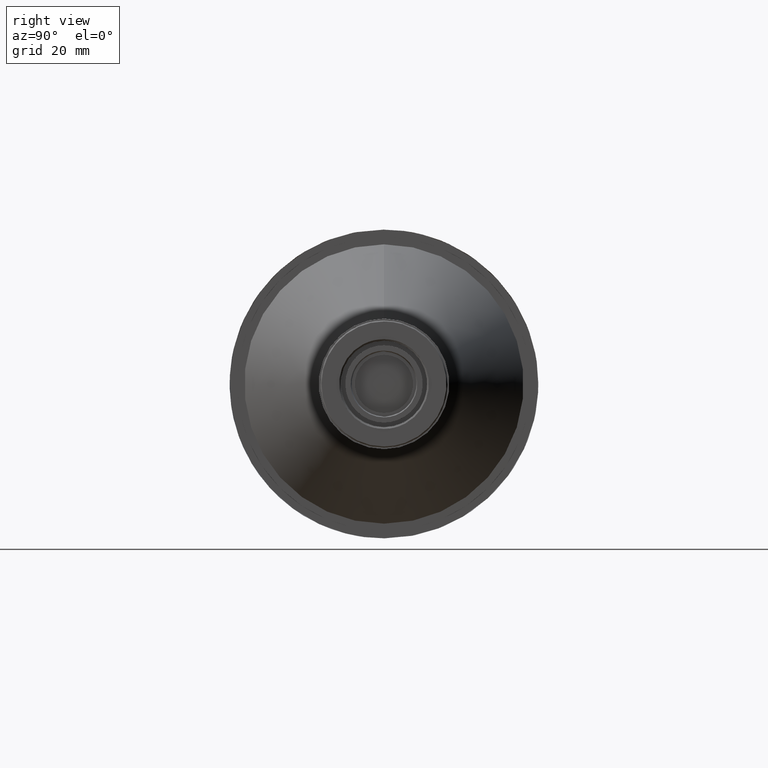
[diagram: clean part render]
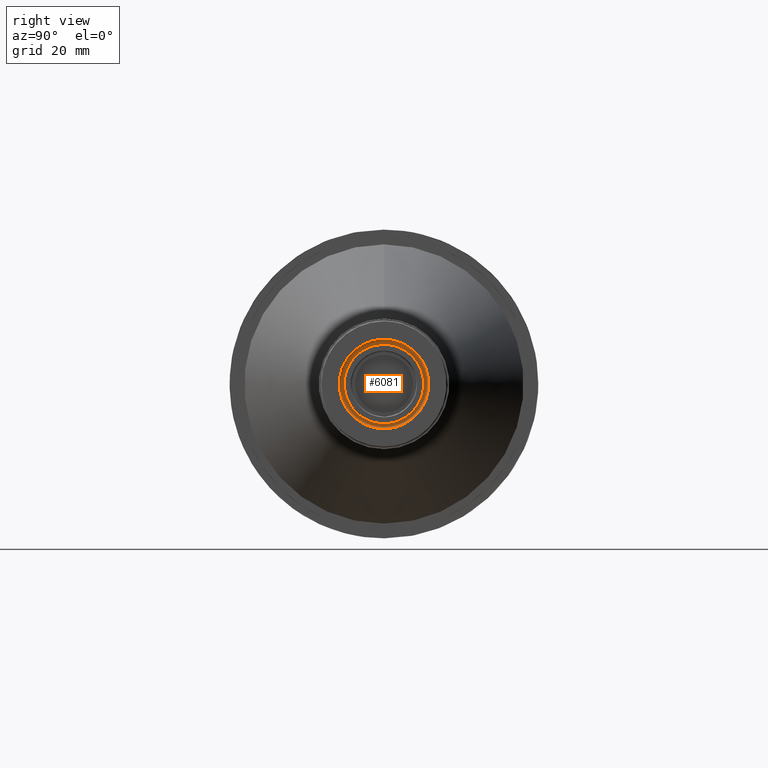
[diagram: same view with one face highlighted and labeled with its STEP entity id]
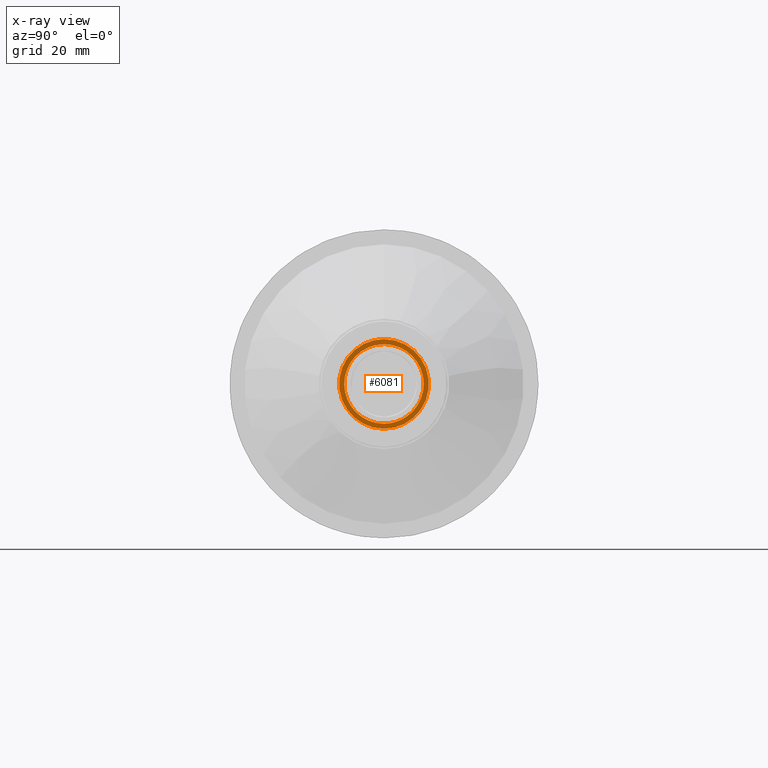
[diagram: x-ray of the same camera — body ghosted, the highlighted face saturated]
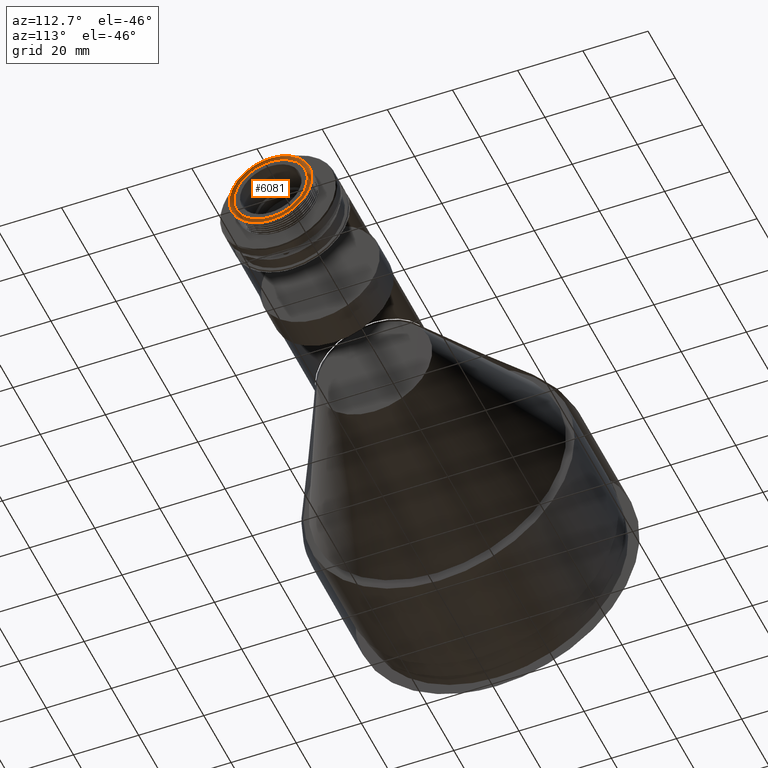
[diagram: same view with one face highlighted and labeled with its STEP entity id]
A machine part, right view. The second image highlights one B-rep face of the part: STEP entity #6081.
The next image is the same camera in x-ray: the body ghosted, the highlighted face saturated — about 0% of this face is hidden behind the body in this view.
A second angle (auxiliary view) of the same face is appended — the face is thin or edge-on in the first view.
In plain terms, the highlighted planar face has unit normal (1, 0, 0).
Its self-contained STEP definition (entity closure, byte-faithful):
#68 = ORIENTED_EDGE ( 'NONE', *, *, #9069, .F. ) ;
#124 = ORIENTED_EDGE ( 'NONE', *, *, #7775, .F. ) ;
#198 = CARTESIAN_POINT ( 'NONE',  ( 142.1281150460000049, -4.089309520994381941, -152.0589208175169347 ) ) ;
#252 = CARTESIAN_POINT ( 'NONE',  ( 142.1281150460000617, -12.05249437337261575, -168.2007247117704765 ) ) ;
#257 = CARTESIAN_POINT ( 'NONE',  ( 142.1281150461006462, -2.469514031852679370, -153.1357972609465037 ) ) ;
#275 = CARTESIAN_POINT ( 'NONE',  ( 142.1281150460000333, 0.8337087296231190381, -176.8114151909013287 ) ) ;
#291 = CARTESIAN_POINT ( 'NONE',  ( 142.1281150470085208, 3.305403645210173380, -174.8649396506705216 ) ) ;
#307 = CARTESIAN_POINT ( 'NONE',  ( 142.1281150460000049, -11.02318444323632285, -157.7493154524258898 ) ) ;
#338 = B_SPLINE_CURVE_WITH_KNOTS ( 'NONE', 3,
 ( #886, #5170, #5683, #10597, #8423, #8476, #942, #6859, #7496, #8973, #3381, #3435, #1558, #1047, #10038, #2622, #3486, #7302 ),
 .UNSPECIFIED., .F., .F.,
 ( 4, 2, 2, 2, 2, 2, 2, 2, 4 ),
 ( 0.000000000000000000, 0.1161941781392217682, 0.2323883562784435364, 0.3485825344176653462, 0.4647767125568871838, 0.5809708906961090769, 0.6971650688353308034, 0.8133592469745525300, 0.9295534251137743675 ),
 .UNSPECIFIED. ) ;
#341 = FACE_OUTER_BOUND ( 'NONE', #2191, .T. ) ;
#479 = EDGE_CURVE ( 'NONE', #3089, #2261, #4824, .T. ) ;
#886 = CARTESIAN_POINT ( 'NONE',  ( 142.1281150460268066, 5.200632462929629636E-16, -175.3614151910510088 ) ) ;
#927 = VERTEX_POINT ( 'NONE', #7573 ) ;
#942 = CARTESIAN_POINT ( 'NONE',  ( 142.1281150460992535, -9.374096471147021603, -170.4802964846820998 ) ) ;
#1014 = CARTESIAN_POINT ( 'NONE',  ( 142.1281150460000049, -6.362059593615947861, -153.0882908286282884 ) ) ;
#1036 = CARTESIAN_POINT ( 'NONE',  ( 142.1281150460000049, 9.570192958380822290, -172.5017855692788373 ) ) ;
#1040 = CARTESIAN_POINT ( 'NONE',  ( 142.1281150467932548, 2.665316661739832504, -153.1007369669027298 ) ) ;
#1047 = CARTESIAN_POINT ( 'NONE',  ( 142.1281150461693414, -8.365259645773912567, -156.4655820353657703 ) ) ;
#1201 = CARTESIAN_POINT ( 'NONE',  ( 142.1281150460000049, 8.390319283762403657, -173.6815570545719254 ) ) ;
#1214 = CARTESIAN_POINT ( 'NONE',  ( 142.1281150474219999, 2.236445919930073245, -175.1934455286929051 ) ) ;
#1250 = CARTESIAN_POINT ( 'NONE',  ( 142.1281150460000049, 12.29318146721819005, -167.4072856962959008 ) ) ;
#1298 = ORIENTED_EDGE ( 'NONE', *, *, #479, .T. ) ;
#1464 = CARTESIAN_POINT ( 'NONE',  ( 142.1281150462090750, -0.8299291593169152437, -152.8614151908892893 ) ) ;
#1544 = VERTEX_POINT ( 'NONE', #291 ) ;
#1558 = CARTESIAN_POINT ( 'NONE',  ( 142.1281150461565801, -9.954685225413809846, -158.6947210287233929 ) ) ;
#1753 = ORIENTED_EDGE ( 'NONE', *, *, #3454, .T. ) ;
#1833 = CARTESIAN_POINT ( 'NONE',  ( 142.1281150460000049, -8.390370378502133519, -173.6816081493151671 ) ) ;
#1862 = CARTESIAN_POINT ( 'NONE',  ( 142.1281150460993956, -1.333330925090916115E-09, -152.8614151907445091 ) ) ;
#1887 = CARTESIAN_POINT ( 'NONE',  ( 142.1281150460000049, -11.41404575266847843, -169.7422648520538360 ) ) ;
#1911 = CARTESIAN_POINT ( 'NONE',  ( 142.1281150460000049, 5.630849661164244679, -175.5254609434117867 ) ) ;
#1915 = CARTESIAN_POINT ( 'NONE',  ( 142.1281150502141486, 10.49256231324906352, -159.8399887272955198 ) ) ;
#1944 = CARTESIAN_POINT ( 'NONE',  ( 142.1281150460000049, -5.630849661174716303, -152.6973694381954374 ) ) ;
#1976 = CARTESIAN_POINT ( 'NONE',  ( 142.1281150505417656, 10.92717457548968518, -161.1221337161994427 ) ) ;
#1981 = B_SPLINE_CURVE_WITH_KNOTS ( 'NONE', 3,
 ( #8479, #1214, #4365, #6166 ),
 .UNSPECIFIED., .F., .F.,
 ( 4, 4 ),
 ( 0.9050760576142046210, 1.000000000000000000 ),
 .UNSPECIFIED. ) ;
#2003 = CARTESIAN_POINT ( 'NONE',  ( 142.1281150460000049, -12.61876465516866652, -162.4519915171018170 ) ) ;
#2052 = CARTESIAN_POINT ( 'NONE',  ( 142.1281150460000617, -7.749384180475515471, -174.2075589002413381 ) ) ;
#2191 = EDGE_LOOP ( 'NONE', ( #1298, #1753 ) ) ;
#2261 = VERTEX_POINT ( 'NONE', #4822 ) ;
#2325 = CARTESIAN_POINT ( 'NONE',  ( 142.1281150460000049, 6.362099738270784677, -153.0882307476019832 ) ) ;
#2483 = CARTESIAN_POINT ( 'NONE',  ( 142.1281150460000617, 9.570141863666275839, -155.7210959070163199 ) ) ;
#2622 = CARTESIAN_POINT ( 'NONE',  ( 142.1281150461884693, -5.084660829757294387, -153.9831104053117770 ) ) ;
#2695 = CARTESIAN_POINT ( 'NONE',  ( 142.1281150460000049, -12.29325233769966808, -167.4072997933409397 ) ) ;
#2724 = CARTESIAN_POINT ( 'NONE',  ( 142.1281150490085281, 8.350373444438940140, -156.4556845762364503 ) ) ;
#2730 = DIRECTION ( 'NONE',  ( 0.000000000000000000, 1.000000000000000000, 0.000000000000000000 ) ) ;
#2750 = CARTESIAN_POINT ( 'NONE',  ( 142.1281150460000049, -12.69996387074446531, -163.2771546439656731 ) ) ;
#2831 = CARTESIAN_POINT ( 'NONE',  ( 142.1281150460000049, 3.295703086390380232, -176.4047036260806749 ) ) ;
#2860 = CARTESIAN_POINT ( 'NONE',  ( 142.1281150459999481, -0.8340789532482671964, -176.8114151909012719 ) ) ;
#2990 = CARTESIAN_POINT ( 'NONE',  ( 142.1281150506490576, 8.811268366744505087, -171.2318433880163298 ) ) ;
#3089 = VERTEX_POINT ( 'NONE', #4579 ) ;
#3300 = CARTESIAN_POINT ( 'NONE',  ( 142.1281150460000617, 11.02312436214628200, -157.7493555972993988 ) ) ;
#3381 = CARTESIAN_POINT ( 'NONE',  ( 142.1281150461374523, -11.23244554901814851, -162.6052609583236119 ) ) ;
#3435 = CARTESIAN_POINT ( 'NONE',  ( 142.1281150461502421, -10.54350708471262088, -159.9556009580037426 ) ) ;
#3454 = EDGE_CURVE ( 'NONE', #2261, #3089, #4943, .T. ) ;
#3486 = CARTESIAN_POINT ( 'NONE',  ( 142.1281150461949210, -3.805005278530035007, -153.4362913783233751 ) ) ;
#3531 = CARTESIAN_POINT ( 'NONE',  ( 142.1281150460000049, 11.02318444313323909, -170.4735149291873881 ) ) ;
#3537 = CARTESIAN_POINT ( 'NONE',  ( 142.1281150481080431, 6.330300778964928377, -154.7164037521253590 ) ) ;
#3637 = CARTESIAN_POINT ( 'NONE',  ( 142.1281150460000049, 6.362059593462438656, -175.1345395530319706 ) ) ;
#4306 = ORIENTED_EDGE ( 'NONE', *, *, #5596, .F. ) ;
#4355 = CARTESIAN_POINT ( 'NONE',  ( 142.1281150476468440, 5.164380136115298114, -154.0283538657291160 ) ) ;
#4365 = CARTESIAN_POINT ( 'NONE',  ( 142.1281150467542034, 1.118296350182958587, -175.3614151917524566 ) ) ;
#4381 = CARTESIAN_POINT ( 'NONE',  ( 142.1281150460023923, -3.379735931423594870E-15, -176.8114151909504983 ) ) ;
#4403 = CARTESIAN_POINT ( 'NONE',  ( 142.1281150460000049, 12.29325233756361513, -160.8155305883485937 ) ) ;
#4415 = DIRECTION ( 'NONE',  ( 1.000000000000000000, 0.000000000000000000, 0.000000000000000000 ) ) ;
#4537 = CARTESIAN_POINT ( 'NONE',  ( 142.1281150460000049, -12.70003612953393279, -164.9456757377003271 ) ) ;
#4579 = CARTESIAN_POINT ( 'NONE',  ( 142.1281150460023923, -3.379735931423594870E-15, -176.8114151909504983 ) ) ;
#4692 = CARTESIAN_POINT ( 'NONE',  ( 142.1281150460035860, -4.670272243563119491E-14, -151.4114151909254815 ) ) ;
#4724 = CARTESIAN_POINT ( 'NONE',  ( 142.1281150470085208, 3.305403645210173380, -174.8649396506705216 ) ) ;
#4766 = CARTESIAN_POINT ( 'NONE',  ( 142.1281150460000049, 3.295870505412672902, -151.8182337235437842 ) ) ;
#4819 = CARTESIAN_POINT ( 'NONE',  ( 142.1281150462051812, -1.659825210603128376, -152.9536258632644206 ) ) ;
#4822 = CARTESIAN_POINT ( 'NONE',  ( 142.1281150460035860, -4.670272243563119491E-14, -151.4114151909254815 ) ) ;
#4824 = B_SPLINE_CURVE_WITH_KNOTS ( 'NONE', 3,
 ( #4381, #2860, #10165, #6130, #8547, #7735, #9469, #2052, #1833, #5963, #8649, #9414, #1887, #252, #2695, #7623, #4537, #2750, #2003, #10111, #9253, #5138, #307, #8597, #8440, #9361, #6015, #1014, #1944, #198, #6823, #5193, #5251, #4692 ),
 .UNSPECIFIED., .F., .F.,
 ( 4, 2, 2, 2, 2, 2, 2, 2, 2, 2, 2, 2, 2, 2, 2, 2, 4 ),
 ( 0.000000000000000000, 0.06250000000000000000, 0.1250000000000000000, 0.1875000000000000000, 0.2500000000000000000, 0.3125000000000000000, 0.3750000000000000000, 0.4375000000000000000, 0.5000000000000000000, 0.5625000000000000000, 0.6250000000000000000, 0.6875000000000000000, 0.7500000000000000000, 0.8125000000000000000, 0.8750000000000000000, 0.9375000000000000000, 1.000000000000000000 ),
 .UNSPECIFIED. ) ;
#4943 = B_SPLINE_CURVE_WITH_KNOTS ( 'NONE', 3,
 ( #5747, #10499, #6399, #4766, #6458, #9739, #2325, #8121, #9902, #2483, #10706, #3300, #6617, #5802, #4403, #8620, #5986, #8464, #6155, #1250, #10243, #9274, #3531, #6040, #1036, #1201, #5159, #3637, #1911, #7708, #2831, #9327, #275, #9439 ),
 .UNSPECIFIED., .F., .F.,
 ( 4, 2, 2, 2, 2, 2, 2, 2, 2, 2, 2, 2, 2, 2, 2, 2, 4 ),
 ( 0.000000000000000000, 0.06250000000000000000, 0.1250000000000000000, 0.1875000000000000000, 0.2500000000000000000, 0.3125000000000000000, 0.3750000000000000000, 0.4375000000000000000, 0.5000000000000000000, 0.5625000000000000000, 0.6250000000000000000, 0.6875000000000000000, 0.7500000000000000000, 0.8125000000000000000, 0.8750000000000000000, 0.9375000000000000000, 1.000000000000000000 ),
 .UNSPECIFIED. ) ;
#5138 = CARTESIAN_POINT ( 'NONE',  ( 142.1281150460000049, -11.41397899425601636, -158.4805931818600584 ) ) ;
#5159 = CARTESIAN_POINT ( 'NONE',  ( 142.1281150460000049, 7.749424325243238876, -174.2076189811830886 ) ) ;
#5170 = CARTESIAN_POINT ( 'NONE',  ( 142.1281150460541198, -1.368880411574136646, -175.3614151910523447 ) ) ;
#5193 = CARTESIAN_POINT ( 'NONE',  ( 142.1281150460000049, -1.659591092913893728, -151.4927575037207816 ) ) ;
#5226 = CARTESIAN_POINT ( 'NONE',  ( 142.1281150510110649, 11.32317114359612198, -163.7582251552249772 ) ) ;
#5251 = CARTESIAN_POINT ( 'NONE',  ( 142.1281150460000333, -0.8337087297044937229, -151.4114151907647283 ) ) ;
#5477 = B_SPLINE_CURVE_WITH_KNOTS ( 'NONE', 3,
 ( #1862, #8468, #1040, #4355, #3537, #2724, #6046, #1915, #1976, #5226, #8132, #10402, #5545, #2990, #8083, #10460, #7973, #4724 ),
 .UNSPECIFIED., .F., .F.,
 ( 4, 2, 2, 2, 2, 2, 2, 2, 4 ),
 ( 0.000000000000000000, 0.1131345072017755776, 0.2262690144035511552, 0.3394035216053267190, 0.4525380288071023105, 0.5656725360088779020, 0.6788070432106534380, 0.7919415504124290850, 0.9050760576142046210 ),
 .UNSPECIFIED. ) ;
#5545 = CARTESIAN_POINT ( 'NONE',  ( 142.1281150511014175, 10.23116011303125994, -168.9758073103742788 ) ) ;
#5596 = EDGE_CURVE ( 'NONE', #5776, #927, #7440, .T. ) ;
#5683 = CARTESIAN_POINT ( 'NONE',  ( 142.1281150460606000, -2.737358296704091032, -175.1088332124258500 ) ) ;
#5747 = CARTESIAN_POINT ( 'NONE',  ( 142.1281150460035860, -4.670272243563119491E-14, -151.4114151909254815 ) ) ;
#5776 = VERTEX_POINT ( 'NONE', #257 ) ;
#5802 = CARTESIAN_POINT ( 'NONE',  ( 142.1281150460000617, 12.05249437323785422, -160.0221056699137137 ) ) ;
#5963 = CARTESIAN_POINT ( 'NONE',  ( 142.1281150460000617, -9.570141863824469297, -172.5017344746358958 ) ) ;
#5980 = EDGE_CURVE ( 'NONE', #10395, #5776, #338, .T. ) ;
#5986 = CARTESIAN_POINT ( 'NONE',  ( 142.1281150460000049, 12.70003612939212623, -163.2771546439776955 ) ) ;
#6015 = CARTESIAN_POINT ( 'NONE',  ( 142.1281150460000049, -7.749424325225949595, -154.0152114003902284 ) ) ;
#6040 = CARTESIAN_POINT ( 'NONE',  ( 142.1281150460000049, 10.09614370935272554, -171.8607993712082020 ) ) ;
#6046 = CARTESIAN_POINT ( 'NONE',  ( 142.1281150494473593, 9.203991416821821758, -157.5064556971529157 ) ) ;
#6081 = ADVANCED_FACE ( 'NONE', ( #341, #10147 ), #7073, .F. ) ;
#6130 = CARTESIAN_POINT ( 'NONE',  ( 142.1281150460000049, -3.295870505507600079, -176.4045966581317089 ) ) ;
#6155 = CARTESIAN_POINT ( 'NONE',  ( 142.1281150460000049, 12.61876465501950229, -165.7708388645890523 ) ) ;
#6166 = CARTESIAN_POINT ( 'NONE',  ( 142.1281150460268066, 5.200632462929629636E-16, -175.3614151910510088 ) ) ;
#6399 = CARTESIAN_POINT ( 'NONE',  ( 142.1281150460000049, 1.659423673803527288, -151.4926505357703945 ) ) ;
#6458 = CARTESIAN_POINT ( 'NONE',  ( 142.1281150460000049, 4.089337173104429901, -152.0588540591201649 ) ) ;
#6617 = CARTESIAN_POINT ( 'NONE',  ( 142.1281150460000049, 11.41404575254679443, -158.4805655296594864 ) ) ;
#6823 = CARTESIAN_POINT ( 'NONE',  ( 142.1281150460000049, -3.295703086342506527, -151.8181267555449949 ) ) ;
#6859 = CARTESIAN_POINT ( 'NONE',  ( 142.1281150461120149, -10.62786424103576621, -168.0464927325213580 ) ) ;
#7022 = CARTESIAN_POINT ( 'NONE',  ( 142.1281150460000049, 12.86477418299999975, -164.1114151904999972 ) ) ;
#7061 = CARTESIAN_POINT ( 'NONE',  ( 142.1281150461006462, -2.469514031852679370, -153.1357972609465037 ) ) ;
#7073 = PLANE ( 'NONE',  #7843 ) ;
#7302 = CARTESIAN_POINT ( 'NONE',  ( 142.1281150461006462, -2.469514031852679370, -153.1357972609465037 ) ) ;
#7440 = B_SPLINE_CURVE_WITH_KNOTS ( 'NONE', 3,
 ( #7061, #4819, #1464, #10450 ),
 .UNSPECIFIED., .F., .F.,
 ( 4, 4 ),
 ( 0.9295534251137743675, 1.000000000000000000 ),
 .UNSPECIFIED. ) ;
#7496 = CARTESIAN_POINT ( 'NONE',  ( 142.1281150461184382, -11.03002446246418700, -166.7142778345649106 ) ) ;
#7573 = CARTESIAN_POINT ( 'NONE',  ( 142.1281150460993956, -1.333330925090916115E-09, -152.8614151907445091 ) ) ;
#7623 = CARTESIAN_POINT ( 'NONE',  ( 142.1281150460000617, -12.61869378481473269, -165.7708247675787447 ) ) ;
#7708 = CARTESIAN_POINT ( 'NONE',  ( 142.1281150460000049, 4.089309520917752572, -176.1639095641264134 ) ) ;
#7735 = CARTESIAN_POINT ( 'NONE',  ( 142.1281150460000617, -5.630822008992582894, -175.5253941850458830 ) ) ;
#7775 = EDGE_CURVE ( 'NONE', #1544, #10395, #1981, .T. ) ;
#7843 = AXIS2_PLACEMENT_3D ( 'NONE', #7022, #4415, #2730 ) ;
#7973 = CARTESIAN_POINT ( 'NONE',  ( 142.1281150487261868, 4.579391823586797194, -174.4732740215239062 ) ) ;
#8083 = CARTESIAN_POINT ( 'NONE',  ( 142.1281150502929620, 7.898964946844125201, -172.2320863886429265 ) ) ;
#8121 = CARTESIAN_POINT ( 'NONE',  ( 142.1281150460000617, 7.749384180434894631, -154.0152714815150148 ) ) ;
#8132 = CARTESIAN_POINT ( 'NONE',  ( 142.1281150511525482, 11.28445075913795037, -165.1114746971140619 ) ) ;
#8423 = CARTESIAN_POINT ( 'NONE',  ( 142.1281150460800120, -6.482875304094847024, -173.4070411179888254 ) ) ;
#8440 = CARTESIAN_POINT ( 'NONE',  ( 142.1281150460000049, -9.570192958429897701, -155.7210448122838784 ) ) ;
#8464 = CARTESIAN_POINT ( 'NONE',  ( 142.1281150460000049, 12.69996387060267651, -164.9456757376882763 ) ) ;
#8468 = CARTESIAN_POINT ( 'NONE',  ( 142.1281150464012626, 1.332834512116862991, -152.8614151902200717 ) ) ;
#8476 = CARTESIAN_POINT ( 'NONE',  ( 142.1281150460928586, -8.522857599658781425, -171.5811696661600934 ) ) ;
#8479 = CARTESIAN_POINT ( 'NONE',  ( 142.1281150470085208, 3.305403645210173380, -174.8649396506705216 ) ) ;
#8547 = CARTESIAN_POINT ( 'NONE',  ( 142.1281150460000049, -4.089337173176514462, -176.1639763225736601 ) ) ;
#8597 = CARTESIAN_POINT ( 'NONE',  ( 142.1281150460000049, -10.09614370947418038, -156.3620310104220437 ) ) ;
#8620 = CARTESIAN_POINT ( 'NONE',  ( 142.1281150460000617, 12.61869378467407543, -162.4520056140984821 ) ) ;
#8649 = CARTESIAN_POINT ( 'NONE',  ( 142.1281150460000049, -10.09620379041275484, -171.8608395161510032 ) ) ;
#8748 = EDGE_LOOP ( 'NONE', ( #68, #4306, #10646, #124 ) ) ;
#8819 = CARTESIAN_POINT ( 'NONE',  ( 142.1281150460268066, 5.200632462929629636E-16, -175.3614151910510088 ) ) ;
#8973 = CARTESIAN_POINT ( 'NONE',  ( 142.1281150461310574, -11.33235956806514899, -163.9932618829778903 ) ) ;
#9069 = EDGE_CURVE ( 'NONE', #927, #1544, #5477, .T. ) ;
#9253 = CARTESIAN_POINT ( 'NONE',  ( 142.1281150460000049, -12.05256113178508137, -160.0220780176476580 ) ) ;
#9274 = CARTESIAN_POINT ( 'NONE',  ( 142.1281150460000049, 11.41397899413720296, -169.7422371997726884 ) ) ;
#9327 = CARTESIAN_POINT ( 'NONE',  ( 142.1281150460000049, 1.659591092825819070, -176.7300728779371468 ) ) ;
#9361 = CARTESIAN_POINT ( 'NONE',  ( 142.1281150460000049, -8.390319283896699787, -154.5412733270971444 ) ) ;
#9414 = CARTESIAN_POINT ( 'NONE',  ( 142.1281150460000617, -11.02312436229775194, -170.4734747843330638 ) ) ;
#9439 = CARTESIAN_POINT ( 'NONE',  ( 142.1281150460023923, -3.379735931423594870E-15, -176.8114151909504983 ) ) ;
#9469 = CARTESIAN_POINT ( 'NONE',  ( 142.1281150460000049, -6.362099738366382873, -175.1345996340720887 ) ) ;
#9739 = CARTESIAN_POINT ( 'NONE',  ( 142.1281150460000617, 5.630822008977591331, -152.6974361966736637 ) ) ;
#9902 = CARTESIAN_POINT ( 'NONE',  ( 142.1281150460000049, 8.390370378476948332, -154.5412222324648894 ) ) ;
#10038 = CARTESIAN_POINT ( 'NONE',  ( 142.1281150461757363, -7.365123304339902255, -155.4979784612716287 ) ) ;
#10111 = CARTESIAN_POINT ( 'NONE',  ( 142.1281150460000049, -12.29318146734573425, -160.8155446853104422 ) ) ;
#10147 = FACE_BOUND ( 'NONE', #8748, .T. ) ;
#10165 = CARTESIAN_POINT ( 'NONE',  ( 142.1281150460000049, -1.659423673748800176, -176.7301798459344582 ) ) ;
#10243 = CARTESIAN_POINT ( 'NONE',  ( 142.1281150460000049, 12.05256113164745280, -168.2007523639861688 ) ) ;
#10395 = VERTEX_POINT ( 'NONE', #8819 ) ;
#10402 = CARTESIAN_POINT ( 'NONE',  ( 142.1281150511977103, 10.73837306008376480, -167.7206106656718134 ) ) ;
#10450 = CARTESIAN_POINT ( 'NONE',  ( 142.1281150460993956, -1.333330925090916115E-09, -152.8614151907445091 ) ) ;
#10460 = CARTESIAN_POINT ( 'NONE',  ( 142.1281150493315124, 5.782746941085939341, -173.8530159694300039 ) ) ;
#10499 = CARTESIAN_POINT ( 'NONE',  ( 142.1281150459999481, 0.8340789531550664160, -151.4114151907646431 ) ) ;
#10597 = CARTESIAN_POINT ( 'NONE',  ( 142.1281150460735034, -5.294731747485752038, -174.1315024812868160 ) ) ;
#10646 = ORIENTED_EDGE ( 'NONE', *, *, #5980, .F. ) ;
#10706 = CARTESIAN_POINT ( 'NONE',  ( 142.1281150460000049, 10.09620379033968618, -156.3619908656370114 ) ) ;